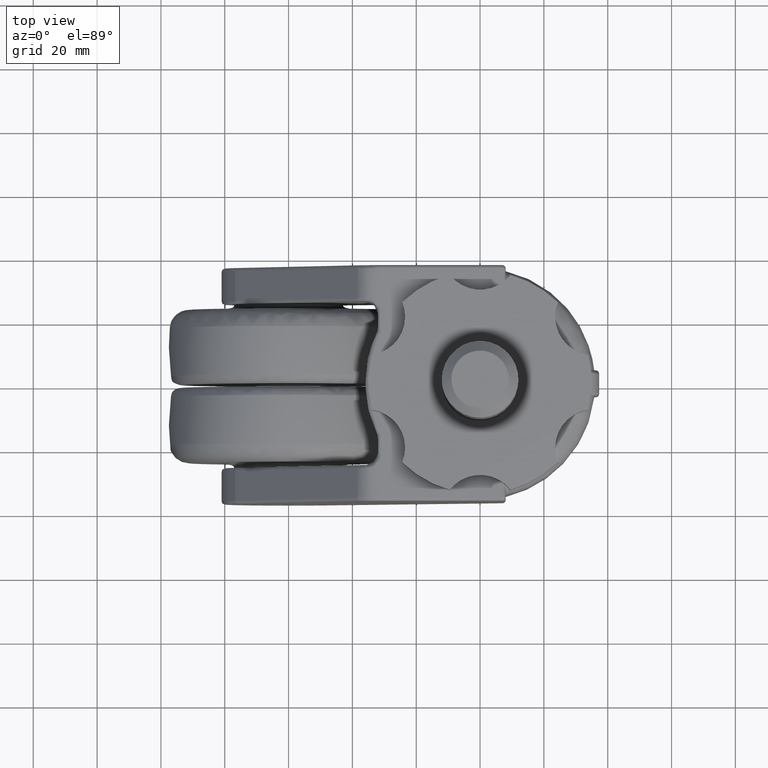
[diagram: clean part render]
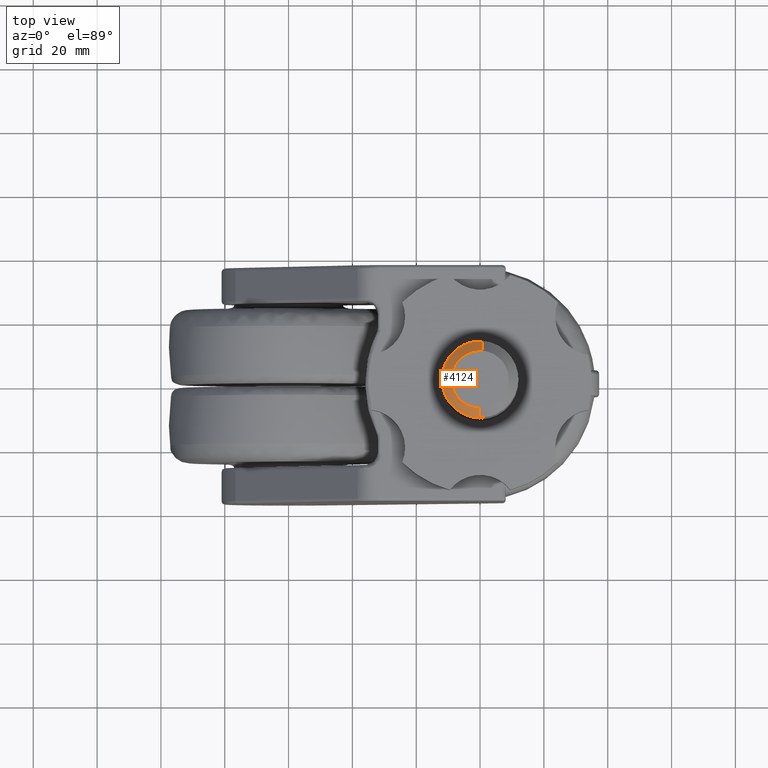
[diagram: same view with one face highlighted and labeled with its STEP entity id]
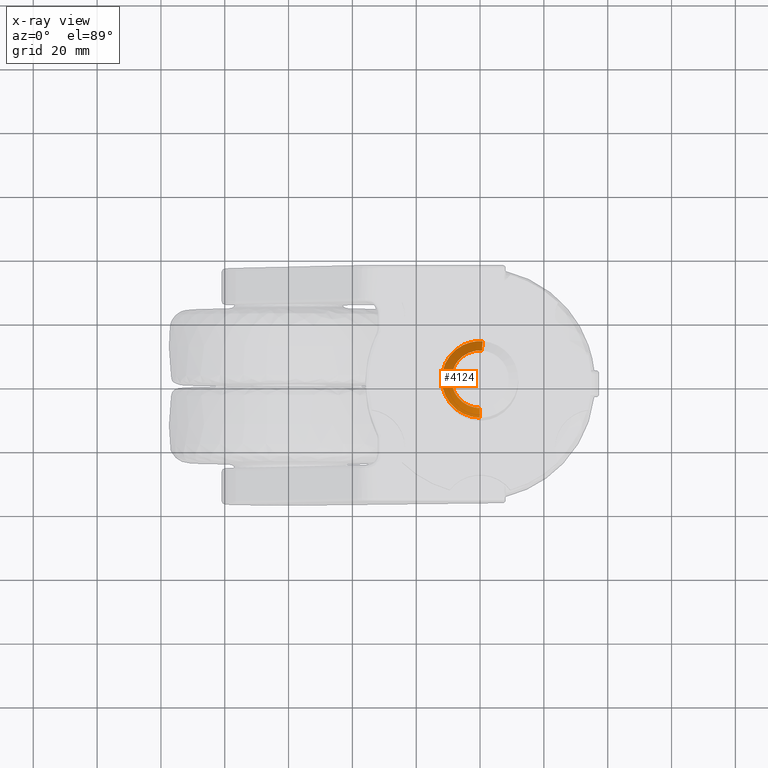
[diagram: x-ray of the same camera — body ghosted, the highlighted face saturated]
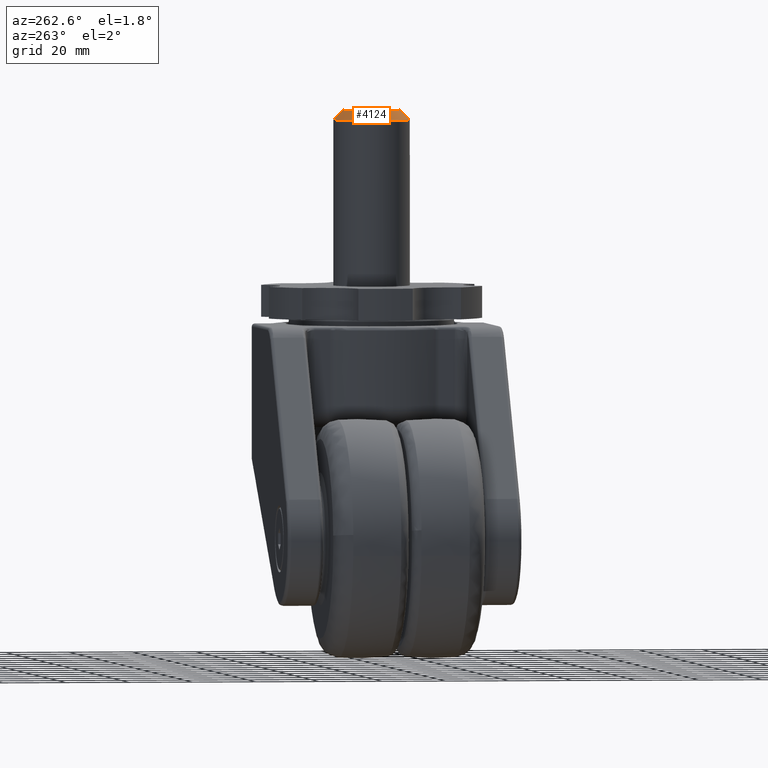
[diagram: same view with one face highlighted and labeled with its STEP entity id]
A machine part, top view. The second image highlights one B-rep face of the part: STEP entity #4124.
The next image is the same camera in x-ray: the body ghosted, the highlighted face saturated — about 0% of this face is hidden behind the body in this view.
A second angle (auxiliary view) of the same face is appended — the face is thin or edge-on in the first view.
In plain terms, the highlighted face is a freeform B-spline surface patch.
Its self-contained STEP definition (entity closure, byte-faithful):
#3927=CARTESIAN_POINT('',(0.790828437846170,11.973912910393651,54.999999999841762));
#3928=VERTEX_POINT('',#3927);
#3944=CARTESIAN_POINT('',(0.593121328215513,8.980434682784004,57.999999999903672));
#3945=VERTEX_POINT('',#3944);
#3946=CARTESIAN_POINT('',(0.593121328215513,8.980434682784004,57.999999999903672));
#3947=CARTESIAN_POINT('',(0.790828437846170,11.973912910393651,54.999999999841762));
#3948=QUASI_UNIFORM_CURVE('',1,(#3946,#3947),.UNSPECIFIED.,.F.,.U.);
#3949=EDGE_CURVE('',#3945,#3928,#3948,.T.);
#3966=CARTESIAN_POINT('',(-0.078538820606449,-8.999657307720442,57.999999999847319));
#3967=VERTEX_POINT('',#3966);
#3983=CARTESIAN_POINT('',(-0.104718427337459,-11.999543076943050,54.999999999815167));
#3984=VERTEX_POINT('',#3983);
#3985=CARTESIAN_POINT('',(-0.078538820606449,-8.999657307720442,57.999999999847319));
#3986=CARTESIAN_POINT('',(-0.104718427337459,-11.999543076943050,54.999999999815167));
#3987=QUASI_UNIFORM_CURVE('',1,(#3985,#3986),.UNSPECIFIED.,.F.,.U.);
#3988=EDGE_CURVE('',#3967,#3984,#3987,.T.);
#4023=CARTESIAN_POINT('',(-0.077884329322987,-8.924660163347721,58.075000000000010));
#4024=CARTESIAN_POINT('',(-9.002544492670708,-8.846775834024733,58.075000000000010));
#4025=CARTESIAN_POINT('',(-8.924660163347721,0.077884329322987,58.075000000000010));
#4026=CARTESIAN_POINT('',(-8.846775834024733,9.002544492670708,58.075000000000010));
#4027=CARTESIAN_POINT('',(0.077884329322987,8.924660163347721,58.075000000000010));
#4028=CARTESIAN_POINT('',(0.333304268904661,8.922431147303868,58.075000000000010));
#4029=CARTESIAN_POINT('',(0.588178649749175,8.905597727046686,58.075000000000010));
#4030=CARTESIAN_POINT('',(-0.105389278396924,-12.076415149605619,54.923124999999992));
#4031=CARTESIAN_POINT('',(-12.181804428002545,-11.971025871208695,54.923124999999992));
#4032=CARTESIAN_POINT('',(-12.076415149605619,0.105389278396924,54.923124999999992));
#4033=CARTESIAN_POINT('',(-11.971025871208695,12.181804428002545,54.923124999999992));
#4034=CARTESIAN_POINT('',(0.105389278396924,12.076415149605619,54.923124999999992));
#4035=CARTESIAN_POINT('',(0.451011091599773,12.073398953736200,54.923124999999992));
#4036=CARTESIAN_POINT('',(0.795894681309756,12.050620789896589,54.923124999999985));
#4044=(BOUNDED_SURFACE()B_SPLINE_SURFACE(2,1,((#4023,#4030),(#4024,#4031),(#4025,#4032),(#4026,#4033),(#4027,#4034),(#4028,#4035),(#4029,#4036)),.UNSPECIFIED.,.F.,.F.,.U.)B_SPLINE_SURFACE_WITH_KNOTS((3,2,2,3),(2,2),(0.0,20.009621664338301,40.019243328676602,40.819628195250132),(0.0,4.457424371904723),.UNSPECIFIED.)GEOMETRIC_REPRESENTATION_ITEM()RATIONAL_B_SPLINE_SURFACE(((1.0,1.0),(0.707106781186548,0.707106781186548),(1.0,1.0),(0.707106781186548,0.707106781186548),(1.0,1.0),(0.988284271247462,0.988284271247462),(0.977505800795127,0.977505800795127)))REPRESENTATION_ITEM('')SURFACE());
#4045=CARTESIAN_POINT('',(-0.941487239195323,11.963009729075260,55.0));
#4046=VERTEX_POINT('',#4045);
#4047=CARTESIAN_POINT('',(-0.941487239195323,11.963009729075264,55.000000000000007));
#4048=CARTESIAN_POINT('',(-0.471470278486981,12.000000000000002,55.0));
#4049=CARTESIAN_POINT('',(0.0,12.0,55.0));
#4050=CARTESIAN_POINT('',(0.395844487463161,12.000000000000002,55.0));
#4051=CARTESIAN_POINT('',(0.790828437846170,11.973912910393645,54.999999999841769));
#4059=(BOUNDED_CURVE()B_SPLINE_CURVE(2,(#4047,#4048,#4049,#4050,#4051),.UNSPECIFIED.,.F.,.U.)B_SPLINE_CURVE_WITH_KNOTS((3,2,3),(0.236331614586603,0.250000000000000,0.261505472961239),.UNSPECIFIED.)CURVE()GEOMETRIC_REPRESENTATION_ITEM()RATIONAL_B_SPLINE_CURVE((0.969724011370444,0.983986490401149,1.0,0.986520499961646,0.974281704109071))REPRESENTATION_ITEM(''));
#4060=EDGE_CURVE('',#4046,#3928,#4059,.T.);
#4061=ORIENTED_EDGE('',*,*,#4060,.F.);
#4062=CARTESIAN_POINT('',(-12.0,0.0,55.0));
#4063=VERTEX_POINT('',#4062);
#4064=CARTESIAN_POINT('',(-12.0,0.0,55.0));
#4065=CARTESIAN_POINT('',(-12.0,11.092706278328212,54.999999999999993));
#4066=CARTESIAN_POINT('',(-0.941487239195323,11.963009729075264,55.000000000000007));
#4074=(BOUNDED_CURVE()B_SPLINE_CURVE(2,(#4064,#4065,#4066),.UNSPECIFIED.,.F.,.U.)B_SPLINE_CURVE_WITH_KNOTS((3,3),(0.0,0.236331614586603),.UNSPECIFIED.)CURVE()GEOMETRIC_REPRESENTATION_ITEM()RATIONAL_B_SPLINE_CURVE((1.0,0.723120290785399,0.969724011370444))REPRESENTATION_ITEM(''));
#4075=EDGE_CURVE('',#4063,#4046,#4074,.T.);
#4076=ORIENTED_EDGE('',*,*,#4075,.F.);
#4077=CARTESIAN_POINT('',(-0.104718427337459,-11.999543076943054,54.999999999815181));
#4078=CARTESIAN_POINT('',(-12.000000000000002,-11.895734524452370,55.0));
#4079=CARTESIAN_POINT('',(-12.0,0.0,55.0));
#4087=(BOUNDED_CURVE()B_SPLINE_CURVE(2,(#4077,#4078,#4079),.UNSPECIFIED.,.F.,.U.)B_SPLINE_CURVE_WITH_KNOTS((3,3),(0.751539894374778,1.0),.UNSPECIFIED.)CURVE()GEOMETRIC_REPRESENTATION_ITEM()RATIONAL_B_SPLINE_CURVE((0.996414028008318,0.708910879666793,1.0))REPRESENTATION_ITEM(''));
#4088=EDGE_CURVE('',#3984,#4063,#4087,.T.);
#4089=ORIENTED_EDGE('',*,*,#4088,.F.);
#4090=ORIENTED_EDGE('',*,*,#3988,.F.);
#4091=CARTESIAN_POINT('',(-9.0,0.0,58.0));
#4092=VERTEX_POINT('',#4091);
#4093=CARTESIAN_POINT('',(-9.0,0.0,58.0));
#4094=CARTESIAN_POINT('',(-9.0,-8.921800893134538,58.0));
#4095=CARTESIAN_POINT('',(-0.078538820606449,-8.999657307720442,57.999999999847319));
#4103=(BOUNDED_CURVE()B_SPLINE_CURVE(2,(#4093,#4094,#4095),.UNSPECIFIED.,.F.,.U.)B_SPLINE_CURVE_WITH_KNOTS((3,3),(0.500000000000000,0.748460105621180),.UNSPECIFIED.)CURVE()GEOMETRIC_REPRESENTATION_ITEM()RATIONAL_B_SPLINE_CURVE((1.0,0.708910879671529,0.996414027998964))REPRESENTATION_ITEM(''));
#4104=EDGE_CURVE('',#4092,#3967,#4103,.T.);
#4105=ORIENTED_EDGE('',*,*,#4104,.F.);
#4106=CARTESIAN_POINT('',(0.593121328215513,8.980434682784004,57.999999999903658));
#4107=CARTESIAN_POINT('',(0.296883365429176,8.999999999999998,57.999999999999993));
#4108=CARTESIAN_POINT('',(0.0,9.0,58.0));
#4109=CARTESIAN_POINT('',(-9.0,9.0,57.999999999999993));
#4110=CARTESIAN_POINT('',(-9.0,0.0,58.0));
#4118=(BOUNDED_CURVE()B_SPLINE_CURVE(2,(#4106,#4107,#4108,#4109,#4110),.UNSPECIFIED.,.F.,.U.)B_SPLINE_CURVE_WITH_KNOTS((3,2,3),(0.238494527045192,0.250000000000000,0.500000000000000),.UNSPECIFIED.)CURVE()GEOMETRIC_REPRESENTATION_ITEM()RATIONAL_B_SPLINE_CURVE((0.974281704122752,0.986520499969180,1.0,0.707106781186547,1.0))REPRESENTATION_ITEM(''));
#4119=EDGE_CURVE('',#3945,#4092,#4118,.T.);
#4120=ORIENTED_EDGE('',*,*,#4119,.F.);
#4121=ORIENTED_EDGE('',*,*,#3949,.T.);
#4122=EDGE_LOOP('',(#4061,#4076,#4089,#4090,#4105,#4120,#4121));
#4123=FACE_OUTER_BOUND('',#4122,.T.);
#4124=ADVANCED_FACE('',(#4123),#4044,.T.);